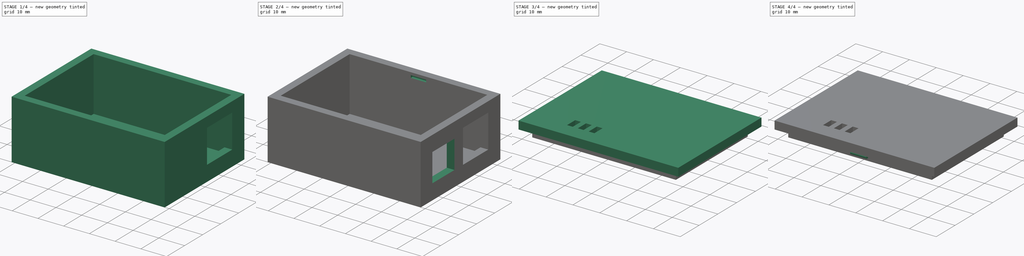
[diagram: build sequence overview — one tinted view per stage of 4, left to right]
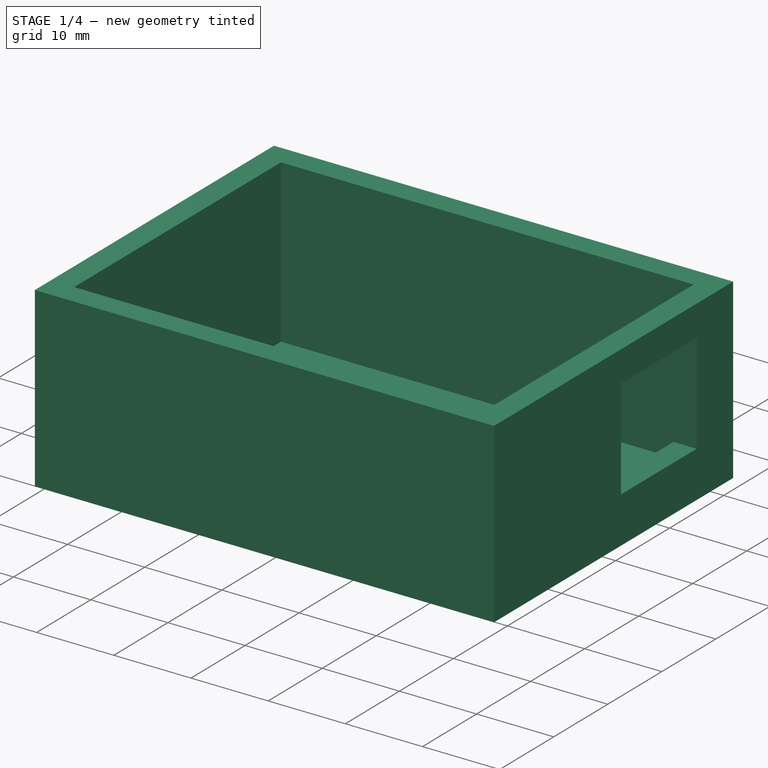
[diagram: stage 1 of 4 — iso view after this stage's code; geometry added in this stage tinted green]
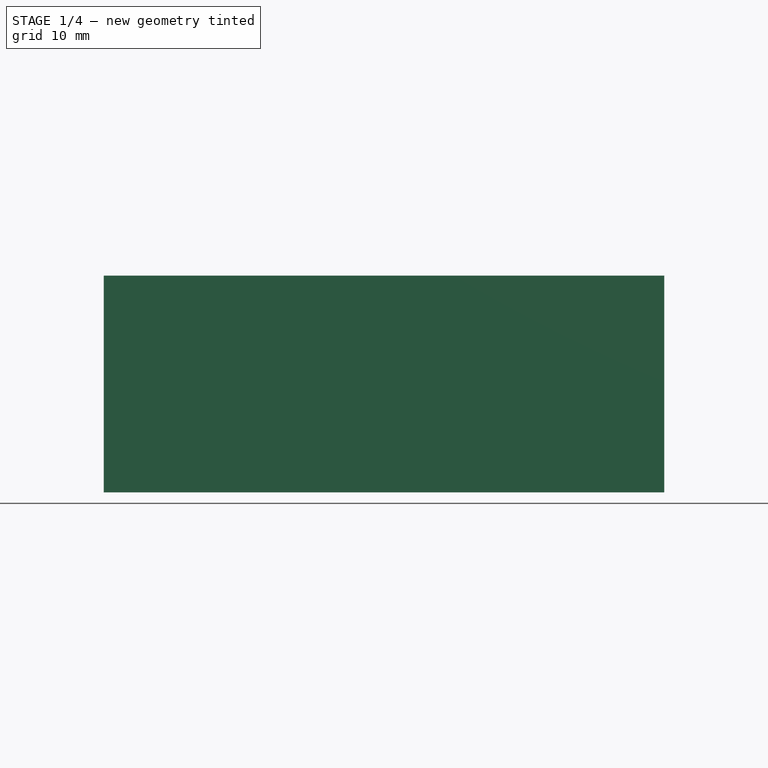
[diagram: stage 1 of 4 — front view after this stage's code; geometry added in this stage tinted green]
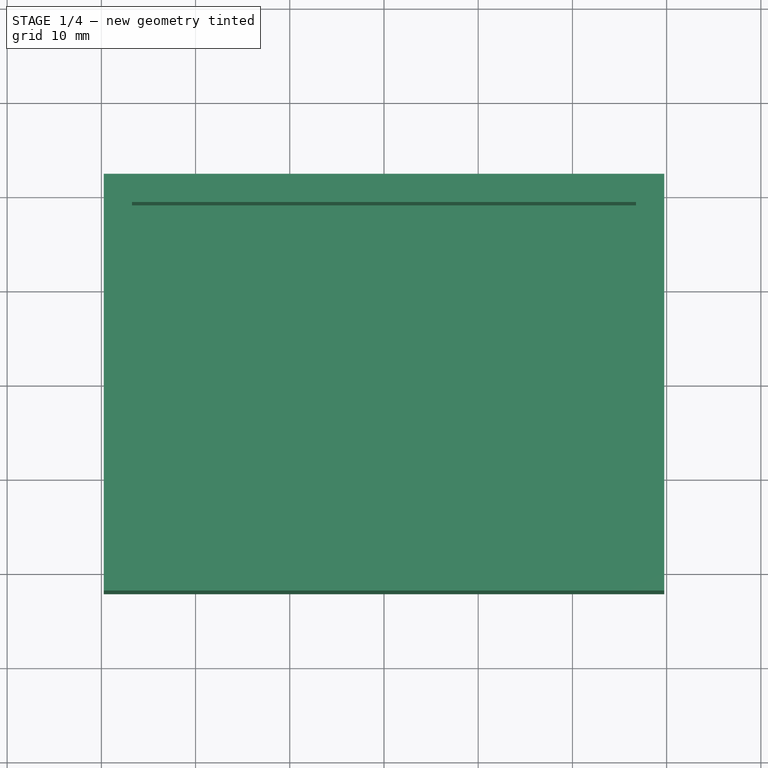
[diagram: stage 1 of 4 — top view after this stage's code; geometry added in this stage tinted green]
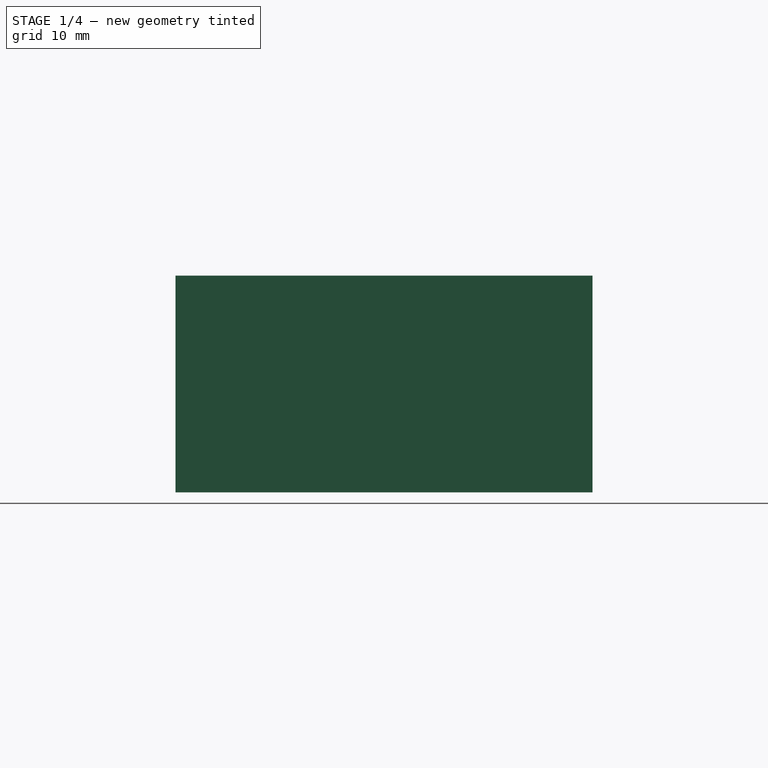
[diagram: stage 1 of 4 — right view after this stage's code; geometry added in this stage tinted green]
FCSTD DOCUMENT  (FreeCAD 1.0R39109 (Git))
Label: smartportbox
License: All rights reserved
LicenseURL: http://en.wikipedia.org/wiki/All_rights_reserved
objects: Sketcher::SketchObject×12, PartDesign::Pad×6, PartDesign::Pocket×5, PartDesign::SubShapeBinder×2, PartDesign::Body×2, PartDesign::Plane×1, PartDesign::Fillet×1, App::Part×1
note: 65 computed .brp shape members not serialized (recipe doc carries the construction recipe); baked Part::Feature solids carry a one-line shape summary decoded from their .brp

FEATURE [Sketcher::SketchObject] Sketch  label="Board"
  ArcFitTolerance = 1e-06
  AttachmentSupport = -> [XY_Plane]
  FullyConstrained = true
  MakeInternals = false
  MapMode = 5
  sketch-geometry (9):
    g0: LineSegment StartX=-26.75 StartY=-19.125 StartZ=0 EndX=26.75 EndY=-19.125 EndZ=0
    g1: LineSegment StartX=26.75 StartY=-19.125 StartZ=0 EndX=26.75 EndY=19.125 EndZ=0
    g2: LineSegment StartX=26.75 StartY=19.125 StartZ=0 EndX=-26.75 EndY=19.125 EndZ=0
    g3: LineSegment StartX=-26.75 StartY=19.125 StartZ=0 EndX=-26.75 EndY=-19.125 EndZ=0
    g4: GeomPoint [constr] X=0 Y=0 Z=0
    g5: LineSegment StartX=-3.5 StartY=15.355 StartZ=0 EndX=-3.5 EndY=9.355 EndZ=0
    g6: LineSegment StartX=-3.5 StartY=9.355 StartZ=0 EndX=2.5 EndY=9.355 EndZ=0
    g7: LineSegment StartX=2.5 StartY=9.355 StartZ=0 EndX=2.5 EndY=15.355 EndZ=0
    g8: LineSegment StartX=2.5 StartY=15.355 StartZ=0 EndX=-3.5 EndY=15.355 EndZ=0
  constraints (24):
    c: Coincident(g0,g1)
    c: Coincident(g1,g2)
    c: Coincident(g2,g3)
    c: Coincident(g3,g0)
    c: Horizontal(g0)
    c: Horizontal(g2)
    c: Vertical(g1)
    c: Vertical(g3)
    c: Symmetric(g2,g0,g4)
    c: Distance(g1,g3) = 53.5
    c: Distance(g0,g2) = 38.25
    c: Coincident(g4,g-1)
    c: Coincident(g5,g6)
    c: Coincident(g6,g7)
    c: Coincident(g7,g8)
    c: Coincident(g8,g5)
    c: Vertical(g5)
    c: Vertical(g7)
    c: Horizontal(g6)
    c: Horizontal(g8)
    c: DistanceY(g7,g1) = 3.77
    c: DistanceY(g7,g7) = 6
    c: DistanceX(g6,g6) = 6
    c: DistanceX(g7,g1) = 24.25
FEATURE [PartDesign::SubShapeBinder] Binder
  BindCopyOnChange = 0
  BindMode = 0
  ClaimChildren = false
  Context = -> Part [Body.Binder.]
  Fuse = false
  MakeFace = true
  OffsetFill = false
  OffsetIntersection = false
  OffsetJoinType = 0
  OffsetOpenResult = false
  PartialLoad = false
  Refine = true
  Relative = true
  Support = -> [Sketch]
  _Version = 2
FEATURE [Sketcher::SketchObject] Sketch001
  ArcFitTolerance = 1e-06
  AttachmentSupport = -> [XY_Plane001]
  ExternalGeometry = -> [Binder]
  FullyConstrained = true
  MakeInternals = false
  MapMode = 5
  sketch-geometry (5):
    g0: LineSegment StartX=-29.75 StartY=22.125 StartZ=0 EndX=-29.75 EndY=-22.125 EndZ=0
    g1: LineSegment StartX=-29.75 StartY=-22.125 StartZ=0 EndX=29.75 EndY=-22.125 EndZ=0
    g2: LineSegment StartX=29.75 StartY=-22.125 StartZ=0 EndX=29.75 EndY=22.125 EndZ=0
    g3: LineSegment StartX=29.75 StartY=22.125 StartZ=0 EndX=-29.75 EndY=22.125 EndZ=0
    g4: GeomPoint [constr] X=0 Y=0 Z=0
  constraints (12):
    c: Coincident(g0,g1)
    c: Coincident(g1,g2)
    c: Coincident(g2,g3)
    c: Coincident(g3,g0)
    c: Vertical(g0)
    c: Vertical(g2)
    c: Horizontal(g1)
    c: Horizontal(g3)
    c: Symmetric(g2,g0,g4)
    c: Coincident(g4,g-1)
    c: DistanceY(g-4,g2) = 3
    c: DistanceX(g-4,g1) = 3
FEATURE [PartDesign::Pad] Pad
  Direction = (0,0,1)
  Length = 2
  Length2 = 10
  Profile = -> Sketch001
  ReferenceAxis = -> Sketch001 [N_Axis]
  Refine = true
  Suppressed = false
  Type = 0
FEATURE [Sketcher::SketchObject] Sketch002
  ArcFitTolerance = 1e-06
  AttachmentSupport = -> [Pad]
  ExternalGeometry = -> [Binder,Pad]
  FullyConstrained = true
  MakeInternals = false
  MapMode = 5
  Placement = pos=(0,0,2) rot=(0,0,1;0rad)
  sketch-geometry (8):
    g0: LineSegment StartX=-26.75 StartY=19.125 StartZ=0 EndX=-26.75 EndY=-19.125 EndZ=0
    g1: LineSegment StartX=-26.75 StartY=-19.125 StartZ=0 EndX=26.75 EndY=-19.125 EndZ=0
    g2: LineSegment StartX=26.75 StartY=-19.125 StartZ=0 EndX=26.75 EndY=19.125 EndZ=0
    g3: LineSegment StartX=26.75 StartY=19.125 StartZ=0 EndX=-26.75 EndY=19.125 EndZ=0
    g4: LineSegment StartX=-29.75 StartY=22.125 StartZ=0 EndX=-29.75 EndY=-22.125 EndZ=0
    g5: LineSegment StartX=-29.75 StartY=-22.125 StartZ=0 EndX=29.75 EndY=-22.125 EndZ=0
    g6: LineSegment StartX=29.75 StartY=-22.125 StartZ=0 EndX=29.75 EndY=22.125 EndZ=0
    g7: LineSegment StartX=29.75 StartY=22.125 StartZ=0 EndX=-29.75 EndY=22.125 EndZ=0
  constraints (20):
    c: Coincident(g0,g1)
    c: Coincident(g1,g2)
    c: Coincident(g2,g3)
    c: Coincident(g3,g0)
    c: Vertical(g0)
    c: Vertical(g2)
    c: Horizontal(g1)
    c: Horizontal(g3)
    c: Coincident(g0,g-3)
    c: Coincident(g1,g-4)
    c: Coincident(g4,g5)
    c: Coincident(g5,g6)
    c: Coincident(g6,g7)
    c: Coincident(g7,g4)
    c: Vertical(g4)
    c: Vertical(g6)
    c: Horizontal(g5)
    c: Horizontal(g7)
    c: Coincident(g4,g-5)
    c: Coincident(g5,g-6)
FEATURE [PartDesign::Pad] Pad001
  BaseFeature = -> Pad
  Direction = (0,0,1)
  Length = 21
  Length2 = 10
  Profile = -> Sketch002
  ReferenceAxis = -> Sketch002 [N_Axis]
  Refine = true
  Suppressed = false
  Type = 0
FEATURE [Sketcher::SketchObject] Sketch003
  ArcFitTolerance = 1e-06
  AttachmentSupport = -> [Pad001]
  ExternalGeometry = -> [Pad001]
  FullyConstrained = true
  MakeInternals = false
  MapMode = 5
  Placement = pos=(26.75,0,0) rot=(0.57735,-0.57735,-0.57735;2.0944rad)
  sketch-geometry (4):
    g0: LineSegment StartX=-15.375 StartY=19 StartZ=0 EndX=-15.375 EndY=6 EndZ=0
    g1: LineSegment StartX=-15.375 StartY=6 StartZ=0 EndX=-1.375 EndY=6 EndZ=0
    g2: LineSegment StartX=-1.375 StartY=6 StartZ=0 EndX=-1.375 EndY=19 EndZ=0
    g3: LineSegment StartX=-1.375 StartY=19 StartZ=0 EndX=-15.375 EndY=19 EndZ=0
  constraints (12):
    c: Coincident(g0,g1)
    c: Coincident(g1,g2)
    c: Coincident(g2,g3)
    c: Coincident(g3,g0)
    c: Vertical(g0)
    c: Vertical(g2)
    c: Horizontal(g1)
    c: Horizontal(g3)
    c: DistanceY(g-3,g0) = 4
    c: DistanceX(g-3,g0) = 3.75
    c: DistanceX(g1,g1) = 14
    c: DistanceY(g2,g2) = 13
FEATURE [PartDesign::Pocket] Pocket
  BaseFeature = -> Pad001
  Direction = (1,0,0)
  Length = 5
  Length2 = 5
  Profile = -> Sketch003
  ReferenceAxis = -> Sketch003 [N_Axis]
  Refine = true
  Suppressed = false
  Type = 2
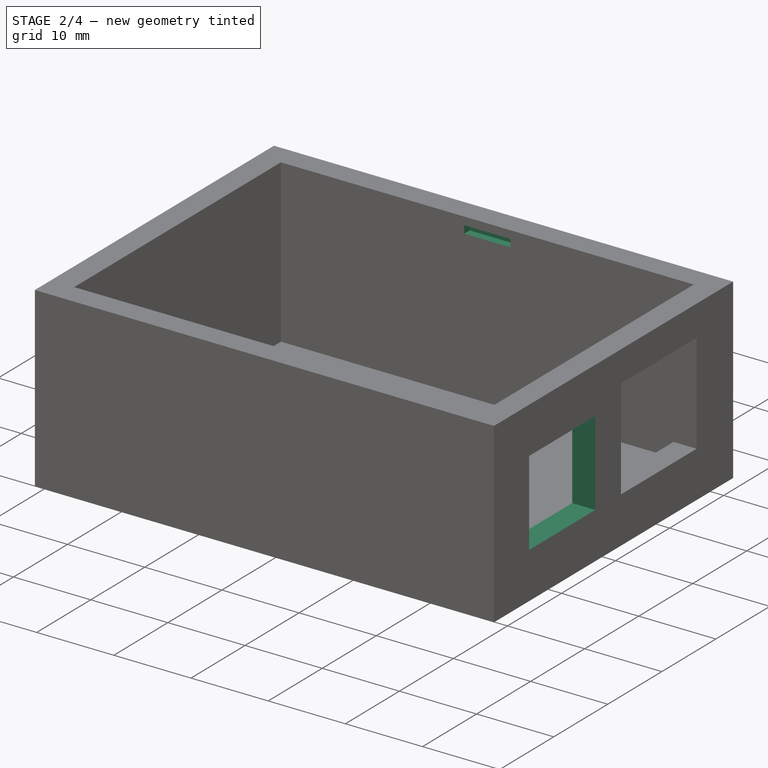
[diagram: stage 2 of 4 — iso view after this stage's code; geometry added in this stage tinted green]
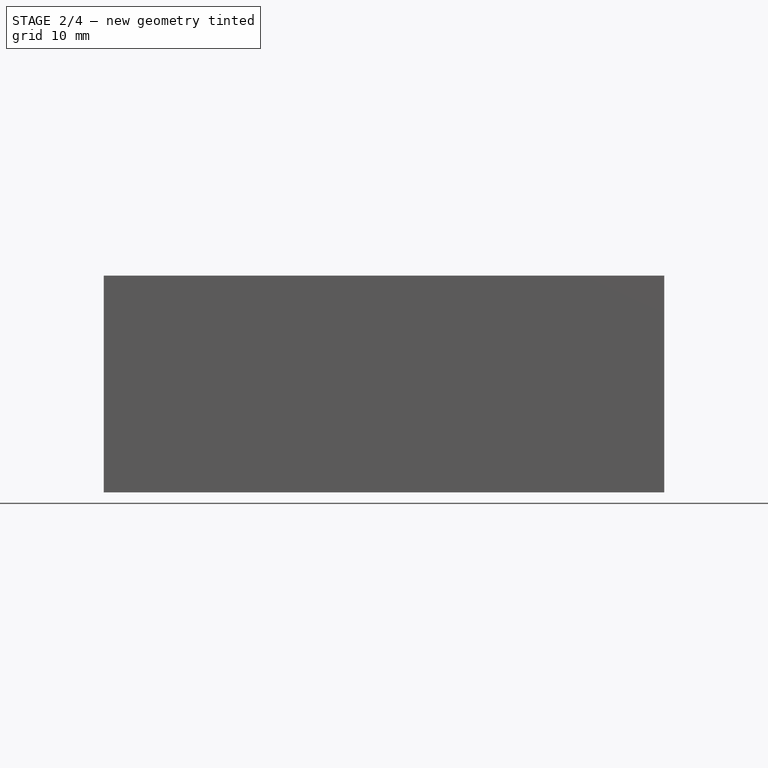
[diagram: stage 2 of 4 — front view after this stage's code; geometry added in this stage tinted green]
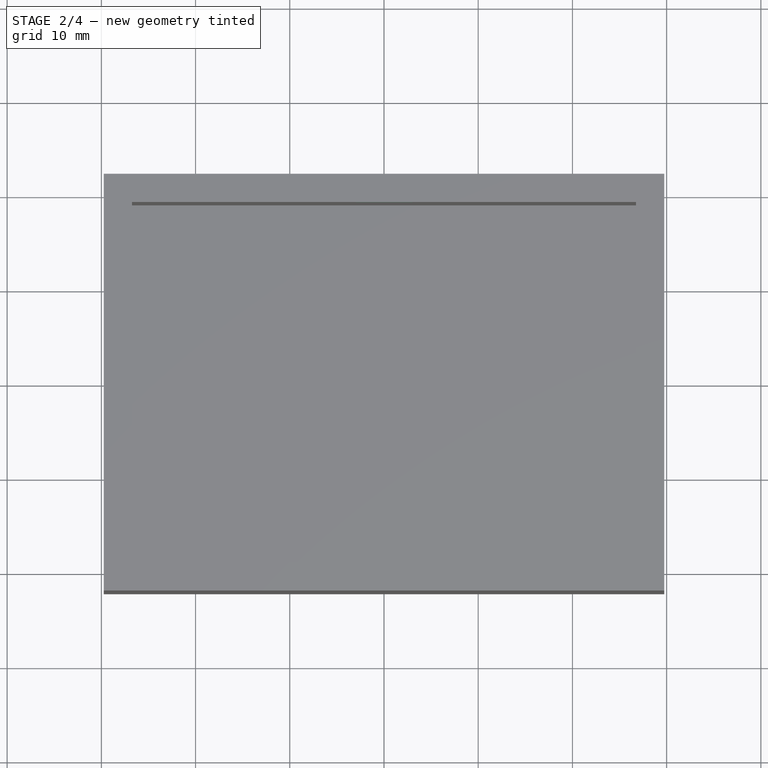
[diagram: stage 2 of 4 — top view after this stage's code; geometry added in this stage tinted green]
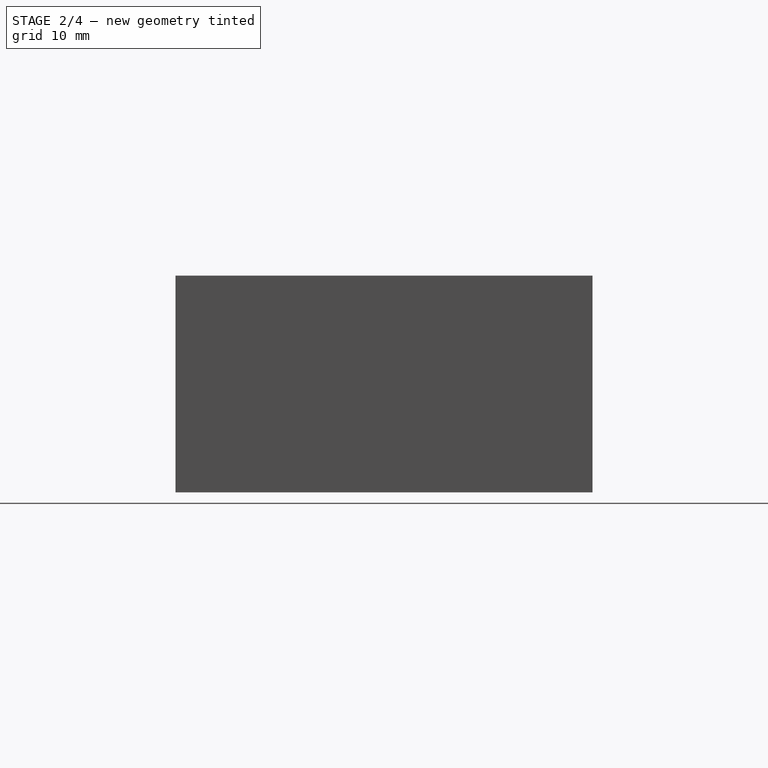
[diagram: stage 2 of 4 — right view after this stage's code; geometry added in this stage tinted green]
FEATURE [Sketcher::SketchObject] Sketch004
  ArcFitTolerance = 1e-06
  AttachmentSupport = -> [Pocket]
  ExternalGeometry = -> [Pocket]
  FullyConstrained = true
  MakeInternals = false
  MapMode = 5
  Placement = pos=(26.75,0,0) rot=(0.57735,-0.57735,-0.57735;2.0944rad)
  sketch-geometry (4):
    g0: LineSegment StartX=3.375 StartY=17 StartZ=0 EndX=3.375 EndY=6 EndZ=0
    g1: LineSegment StartX=3.375 StartY=6 StartZ=0 EndX=15.625 EndY=6 EndZ=0
    g2: LineSegment StartX=15.625 StartY=6 StartZ=0 EndX=15.625 EndY=17 EndZ=0
    g3: LineSegment StartX=15.625 StartY=17 StartZ=0 EndX=3.375 EndY=17 EndZ=0
  constraints (12):
    c: Coincident(g0,g1)
    c: Coincident(g1,g2)
    c: Coincident(g2,g3)
    c: Coincident(g3,g0)
    c: Vertical(g0)
    c: Vertical(g2)
    c: Horizontal(g1)
    c: Horizontal(g3)
    c: Horizontal(g-5,g0)
    c: DistanceX(g1,g-4) = 3.5
    c: DistanceX(g1,g1) = 12.25
    c: DistanceY(g0,g0) = 11
FEATURE [PartDesign::Pocket] Pocket001
  BaseFeature = -> Pocket
  Direction = (1,0,0)
  Length = 5
  Length2 = 5
  Profile = -> Sketch004
  ReferenceAxis = -> Sketch004 [N_Axis]
  Refine = true
  Suppressed = false
  Type = 2
FEATURE [Sketcher::SketchObject] Sketch009
  ArcFitTolerance = 1e-06
  AttachmentSupport = -> [Pocket001]
  ExternalGeometry = -> [Pocket001]
  FullyConstrained = true
  MakeInternals = false
  MapMode = 5
  Placement = pos=(0,19.125,0) rot=(1,0,0;1.5708rad)
  sketch-geometry (5):
    g0: LineSegment StartX=-3 StartY=21 StartZ=0 EndX=3 EndY=21 EndZ=0
    g1: LineSegment StartX=3 StartY=21 StartZ=0 EndX=3 EndY=22 EndZ=0
    g2: LineSegment StartX=3 StartY=22 StartZ=0 EndX=-3 EndY=22 EndZ=0
    g3: LineSegment StartX=-3 StartY=22 StartZ=0 EndX=-3 EndY=21 EndZ=0
    g4: GeomPoint [constr] X=0 Y=21.5 Z=0
  constraints (13):
    c: Coincident(g0,g1)
    c: Coincident(g1,g2)
    c: Coincident(g2,g3)
    c: Coincident(g3,g0)
    c: Horizontal(g0)
    c: Horizontal(g2)
    c: Vertical(g1)
    c: Vertical(g3)
    c: Symmetric(g2,g0,g4)
    c: Distance(g1,g3) = 6
    c: Distance(g0,g2) = 1
    c: PointOnObject(g4,g-2)
    c: DistanceY(g2,g-3) = 1
FEATURE [PartDesign::Pocket] Pocket002
  BaseFeature = -> Pocket001
  Direction = (0,1,-2e-16)
  Length = 1
  Length2 = 5
  Profile = -> Sketch009
  ReferenceAxis = -> Sketch009 [N_Axis]
  Refine = true
  Suppressed = false
  Type = 0
FEATURE [Sketcher::SketchObject] Sketch010
  ArcFitTolerance = 1e-06
  AttachmentSupport = -> [Pocket002]
  ExternalGeometry = -> [Pocket002]
  FullyConstrained = true
  MakeInternals = false
  MapMode = 5
  Placement = pos=(0,-19.125,0) rot=(0,0.707107,0.707107;3.14159rad)
  sketch-geometry (5):
    g0: LineSegment StartX=-3 StartY=21 StartZ=0 EndX=3 EndY=21 EndZ=0
    g1: LineSegment StartX=3 StartY=21 StartZ=0 EndX=3 EndY=22 EndZ=0
    g2: LineSegment StartX=3 StartY=22 StartZ=0 EndX=-3 EndY=22 EndZ=0
    g3: LineSegment StartX=-3 StartY=22 StartZ=0 EndX=-3 EndY=21 EndZ=0
    g4: GeomPoint [constr] X=0 Y=21.5 Z=0
  constraints (13):
    c: Coincident(g0,g1)
    c: Coincident(g1,g2)
    c: Coincident(g2,g3)
    c: Coincident(g3,g0)
    c: Horizontal(g0)
    c: Horizontal(g2)
    c: Vertical(g1)
    c: Vertical(g3)
    c: Symmetric(g2,g0,g4)
    c: Distance(g1,g3) = 6
    c: Distance(g0,g2) = 1
    c: PointOnObject(g4,g-2)
    c: DistanceY(g2,g-3) = 1
FEATURE [PartDesign::Pocket] Pocket003
  BaseFeature = -> Pocket002
  Direction = (0,-1,2e-16)
  Length = 1
  Length2 = 5
  Profile = -> Sketch010
  ReferenceAxis = -> Sketch010 [N_Axis]
  Refine = true
  Suppressed = false
  Type = 0
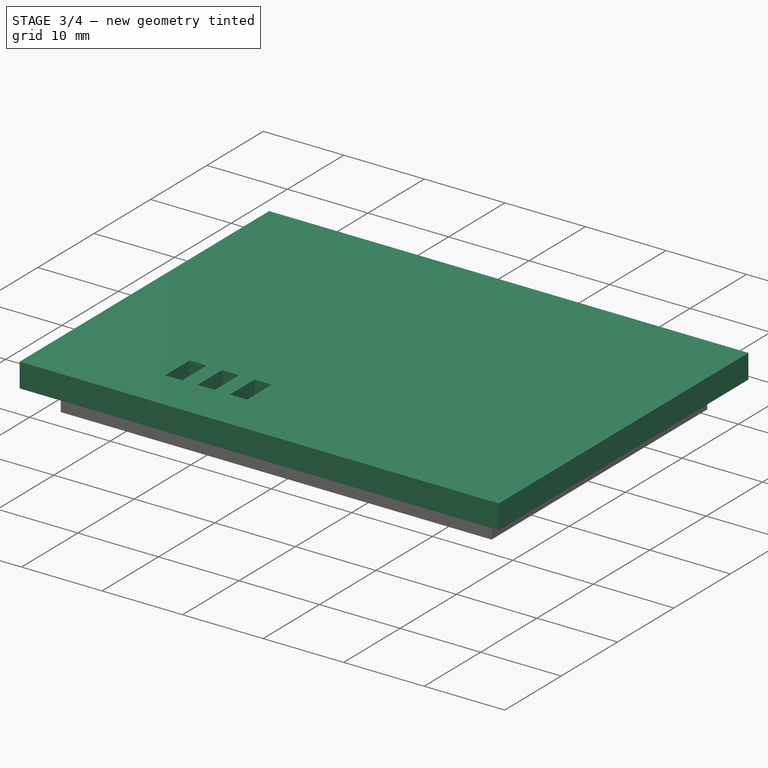
[diagram: stage 3 of 4 — iso view after this stage's code; geometry added in this stage tinted green]
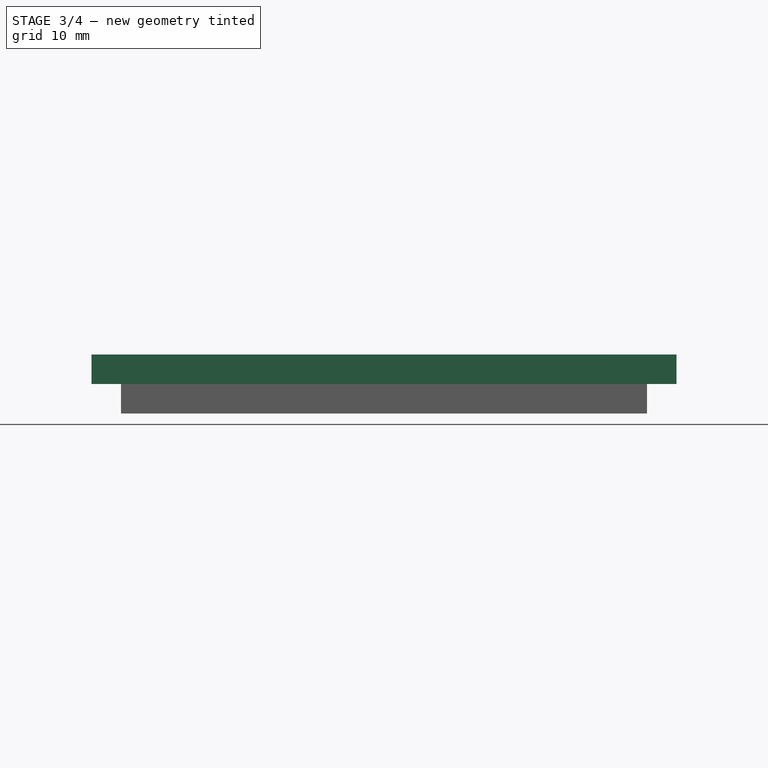
[diagram: stage 3 of 4 — front view after this stage's code; geometry added in this stage tinted green]
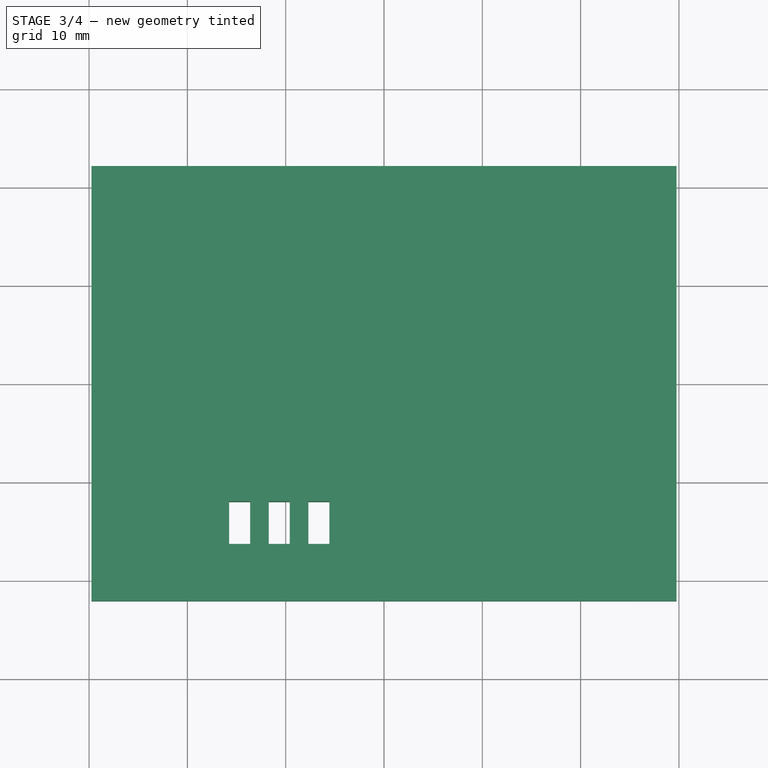
[diagram: stage 3 of 4 — top view after this stage's code; geometry added in this stage tinted green]
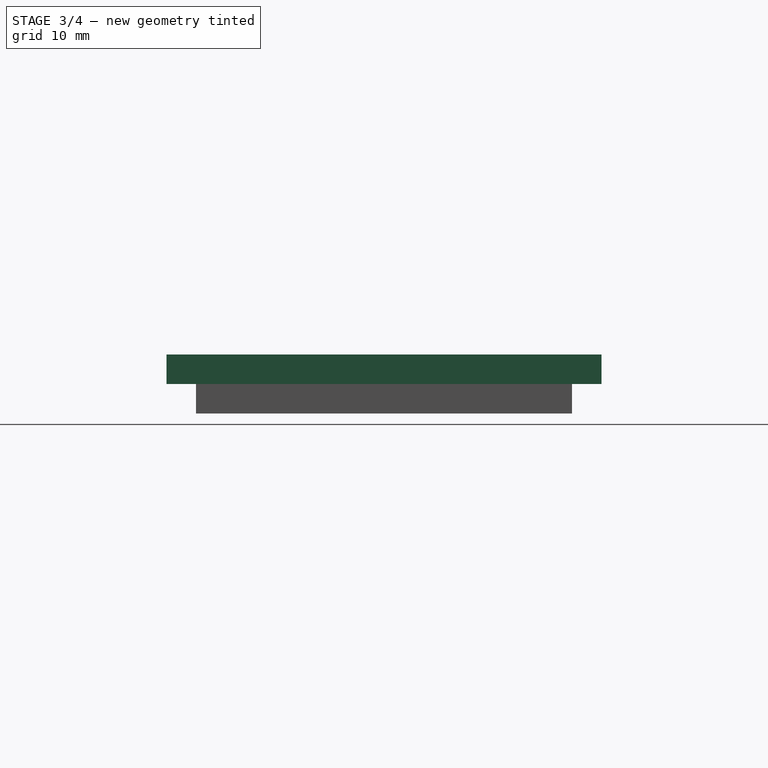
[diagram: stage 3 of 4 — right view after this stage's code; geometry added in this stage tinted green]
FEATURE [PartDesign::SubShapeBinder] Binder001
  BindCopyOnChange = 0
  BindMode = 0
  ClaimChildren = false
  Context = -> Part [Body001.Binder001.]
  Fuse = false
  MakeFace = true
  OffsetFill = false
  OffsetIntersection = false
  OffsetJoinType = 0
  OffsetOpenResult = false
  PartialLoad = false
  Refine = true
  Relative = true
  Support = -> [Body[Pocket001.]]
  _Version = 2
FEATURE [PartDesign::Plane] DatumPlane
  AttachmentSupport = -> [Binder001]
  Length = 70.4087
  MapMode = 5
  Placement = pos=(0,0,23) rot=(0,0,1;0rad)
  ResizeMode = 0
  Width = 60.9087
FEATURE [Sketcher::SketchObject] Sketch005
  ArcFitTolerance = 1e-06
  AttachmentSupport = -> [DatumPlane]
  ExternalGeometry = -> [Binder001]
  FullyConstrained = true
  MakeInternals = false
  MapMode = 5
  Placement = pos=(0,0,23) rot=(0,0,1;0rad)
  sketch-geometry (19):
    g0: LineSegment StartX=-29.75 StartY=22.125 StartZ=0 EndX=-29.75 EndY=-22.125 EndZ=0
    g1: LineSegment StartX=-29.75 StartY=-22.125 StartZ=0 EndX=29.75 EndY=-22.125 EndZ=0
    g2: LineSegment StartX=29.75 StartY=-22.125 StartZ=0 EndX=29.75 EndY=22.125 EndZ=0
    g3: LineSegment StartX=29.75 StartY=22.125 StartZ=0 EndX=-29.75 EndY=22.125 EndZ=0
    g4: LineSegment StartX=-15.75 StartY=-11.975 StartZ=0 EndX=-15.75 EndY=-16.315 EndZ=0
    g5: LineSegment StartX=-15.75 StartY=-16.315 StartZ=0 EndX=-13.62 EndY=-16.315 EndZ=0
    g6: LineSegment StartX=-13.62 StartY=-16.315 StartZ=0 EndX=-13.62 EndY=-11.975 EndZ=0
    g7: LineSegment StartX=-13.62 StartY=-11.975 StartZ=0 EndX=-15.75 EndY=-11.975 EndZ=0
    g8: GeomPoint [constr] X=-14.685 Y=-14.145 Z=0
    g9: LineSegment StartX=-11.72 StartY=-11.975 StartZ=0 EndX=-11.72 EndY=-16.315 EndZ=0
    g10: LineSegment StartX=-11.72 StartY=-16.315 StartZ=0 EndX=-9.59 EndY=-16.315 EndZ=0
    g11: LineSegment StartX=-9.59 StartY=-16.315 StartZ=0 EndX=-9.59 EndY=-11.975 EndZ=0
    g12: LineSegment StartX=-9.59 StartY=-11.975 StartZ=0 EndX=-11.72 EndY=-11.975 EndZ=0
    g13: GeomPoint [constr] X=-10.655 Y=-14.145 Z=0
    g14: LineSegment StartX=-7.69 StartY=-11.975 StartZ=0 EndX=-7.69 EndY=-16.315 EndZ=0
    g15: LineSegment StartX=-7.69 StartY=-16.315 StartZ=0 EndX=-5.56 EndY=-16.315 EndZ=0
    g16: LineSegment StartX=-5.56 StartY=-16.315 StartZ=0 EndX=-5.56 EndY=-11.975 EndZ=0
    g17: LineSegment StartX=-5.56 StartY=-11.975 StartZ=0 EndX=-7.69 EndY=-11.975 EndZ=0
    g18: GeomPoint [constr] X=-6.625 Y=-14.145 Z=0
  constraints (49):
    c: Coincident(g0,g1)
    c: Coincident(g1,g2)
    c: Coincident(g2,g3)
    c: Coincident(g3,g0)
    c: Vertical(g0)
    c: Vertical(g2)
    c: Horizontal(g1)
    c: Horizontal(g3)
    c: Coincident(g0,g-4)
    c: Coincident(g1,g-3)
    c: Coincident(g4,g5)
    c: Coincident(g5,g6)
    c: Coincident(g6,g7)
    c: Coincident(g7,g4)
    c: Vertical(g4)
    c: Vertical(g6)
    c: Horizontal(g5)
    c: Horizontal(g7)
    c: Symmetric(g6,g4,g8)
    c: DistanceX(g-6,g4) = 11
    c: DistanceY(g-6,g4) = 7.15
    c: Distance(g4,g6) = 2.13
    c: DistanceY(g6,g6) = 4.34
    c: Coincident(g9,g10)
    c: Coincident(g10,g11)
    c: Coincident(g11,g12)
    c: Coincident(g12,g9)
    c: Vertical(g9)
    c: Vertical(g11)
    c: Horizontal(g10)
    c: Horizontal(g12)
    c: Symmetric(g11,g9,g13)
    c: Coincident(g14,g15)
    c: Coincident(g15,g16)
    c: Coincident(g16,g17)
    c: Coincident(g17,g14)
    c: Vertical(g14)
    c: Vertical(g16)
    c: Horizontal(g15)
    c: Horizontal(g17)
    c: Symmetric(g16,g14,g18)
    c: Equal(g7,g12)
    c: Equal(g12,g17)
    c: Equal(g9,g6)
    c: Equal(g6,g16)
    c: Horizontal(g9,g6)
    c: Horizontal(g6,g14)
    c: DistanceX(g6,g9) = 1.9
    c: DistanceX(g11,g14) = 1.9
FEATURE [PartDesign::Pad] Pad002
  Direction = (0,0,1)
  Length = 3
  Length2 = 10
  Placement = pos=(0,0,23) rot=(0,0,1;0rad)
  Profile = -> Sketch005
  ReferenceAxis = -> Sketch005 [N_Axis]
  Refine = true
  Suppressed = false
  Type = 0
FEATURE [Sketcher::SketchObject] Sketch006
  ArcFitTolerance = 1e-06
  AttachmentSupport = -> [Pad002]
  ExternalGeometry = -> [Binder001,Sketch005]
  FullyConstrained = true
  MakeInternals = false
  MapMode = 5
  Placement = pos=(0,0,23) rot=(1,0,0;3.14159rad)
  sketch-geometry (16):
    g0: LineSegment StartX=26.75 StartY=19.125 StartZ=0 EndX=-26.75 EndY=19.125 EndZ=0
    g1: LineSegment StartX=-26.75 StartY=19.125 StartZ=0 EndX=-26.75 EndY=-19.125 EndZ=0
    g2: LineSegment StartX=-26.75 StartY=-19.125 StartZ=0 EndX=26.75 EndY=-19.125 EndZ=0
    g3: LineSegment StartX=26.75 StartY=-19.125 StartZ=0 EndX=26.75 EndY=19.125 EndZ=0
    g4: LineSegment StartX=-5.56 StartY=11.975 StartZ=0 EndX=-5.56 EndY=16.315 EndZ=0
    g5: LineSegment StartX=-5.56 StartY=16.315 StartZ=0 EndX=-7.69 EndY=16.315 EndZ=0
    g6: LineSegment StartX=-7.69 StartY=16.315 StartZ=0 EndX=-7.69 EndY=11.975 EndZ=0
    g7: LineSegment StartX=-7.69 StartY=11.975 StartZ=0 EndX=-5.56 EndY=11.975 EndZ=0
    g8: LineSegment StartX=-11.72 StartY=16.315 StartZ=0 EndX=-11.72 EndY=11.975 EndZ=0
    g9: LineSegment StartX=-11.72 StartY=11.975 StartZ=0 EndX=-9.59 EndY=11.975 EndZ=0
    g10: LineSegment StartX=-9.59 StartY=11.975 StartZ=0 EndX=-9.59 EndY=16.315 EndZ=0
    g11: LineSegment StartX=-9.59 StartY=16.315 StartZ=0 EndX=-11.72 EndY=16.315 EndZ=0
    g12: LineSegment StartX=-13.62 StartY=11.975 StartZ=0 EndX=-13.62 EndY=16.315 EndZ=0
    g13: LineSegment StartX=-13.62 StartY=16.315 StartZ=0 EndX=-15.75 EndY=16.315 EndZ=0
    g14: LineSegment StartX=-15.75 StartY=16.315 StartZ=0 EndX=-15.75 EndY=11.975 EndZ=0
    g15: LineSegment StartX=-15.75 StartY=11.975 StartZ=0 EndX=-13.62 EndY=11.975 EndZ=0
  constraints (40):
    c: Coincident(g0,g1)
    c: Coincident(g1,g2)
    c: Coincident(g2,g3)
    c: Coincident(g3,g0)
    c: Horizontal(g0)
    c: Horizontal(g2)
    c: Vertical(g1)
    c: Vertical(g3)
    c: Coincident(g0,g-3)
    c: Coincident(g1,g-4)
    c: Coincident(g4,g5)
    c: Coincident(g5,g6)
    c: Coincident(g6,g7)
    c: Coincident(g7,g4)
    c: Vertical(g4)
    c: Vertical(g6)
    c: Horizontal(g5)
    c: Horizontal(g7)
    c: Coincident(g4,g-5)
    c: Coincident(g5,g-6)
    c: Coincident(g8,g9)
    c: Coincident(g9,g10)
    c: Coincident(g10,g11)
    c: Coincident(g11,g8)
    c: Vertical(g8)
    c: Vertical(g10)
    c: Horizontal(g9)
    c: Horizontal(g11)
    c: Coincident(g8,g-7)
    c: Coincident(g9,g-8)
    c: Coincident(g12,g13)
    c: Coincident(g13,g14)
    c: Coincident(g14,g15)
    c: Coincident(g15,g12)
    c: Vertical(g12)
    c: Vertical(g14)
    c: Horizontal(g13)
    c: Horizontal(g15)
    c: Coincident(g12,g-9)
    c: Coincident(g13,g-10)
FEATURE [PartDesign::Pad] Pad003
  BaseFeature = -> Pad002
  Direction = (0,0,-1)
  Length = 3
  Length2 = 10
  Placement = pos=(0,0,23) rot=(0,0,1;0rad)
  Profile = -> Sketch006
  ReferenceAxis = -> Sketch006 [N_Axis]
  Refine = true
  Suppressed = false
  Type = 0
FEATURE [Sketcher::SketchObject] Sketch011
  ArcFitTolerance = 1e-06
  AttachmentSupport = -> [Pocket003]
  ExternalGeometry = -> [Pocket003]
  FullyConstrained = true
  MakeInternals = false
  MapMode = 5
  Placement = pos=(-26.75,0,0) rot=(0.57735,0.57735,0.57735;2.0944rad)
  sketch-geometry (4):
    g0: LineSegment StartX=-1.675 StartY=10.5 StartZ=0 EndX=-1.675 EndY=2 EndZ=0
    g1: LineSegment StartX=-1.675 StartY=2 StartZ=0 EndX=16.475 EndY=2 EndZ=0
    g2: LineSegment StartX=16.475 StartY=2 StartZ=0 EndX=16.475 EndY=10.5 EndZ=0
    g3: LineSegment StartX=16.475 StartY=10.5 StartZ=0 EndX=-1.675 EndY=10.5 EndZ=0
  constraints (12):
    c: Coincident(g0,g1)
    c: Coincident(g1,g2)
    c: Coincident(g2,g3)
    c: Coincident(g3,g0)
    c: Vertical(g0)
    c: Vertical(g2)
    c: Horizontal(g1)
    c: Horizontal(g3)
    c: DistanceX(g1,g-4) = 2.65
    c: DistanceX(g3,g3) = 18.15
    c: DistanceY(g0,g0) = 8.5
    c: Horizontal(g1,g-4)
FEATURE [PartDesign::Pocket] Pocket004
  BaseFeature = -> Pocket003
  Direction = (-1,0,0)
  Length = 5
  Length2 = 5
  Profile = -> Sketch011
  ReferenceAxis = -> Sketch011 [N_Axis]
  Refine = true
  Suppressed = false
  Type = 2
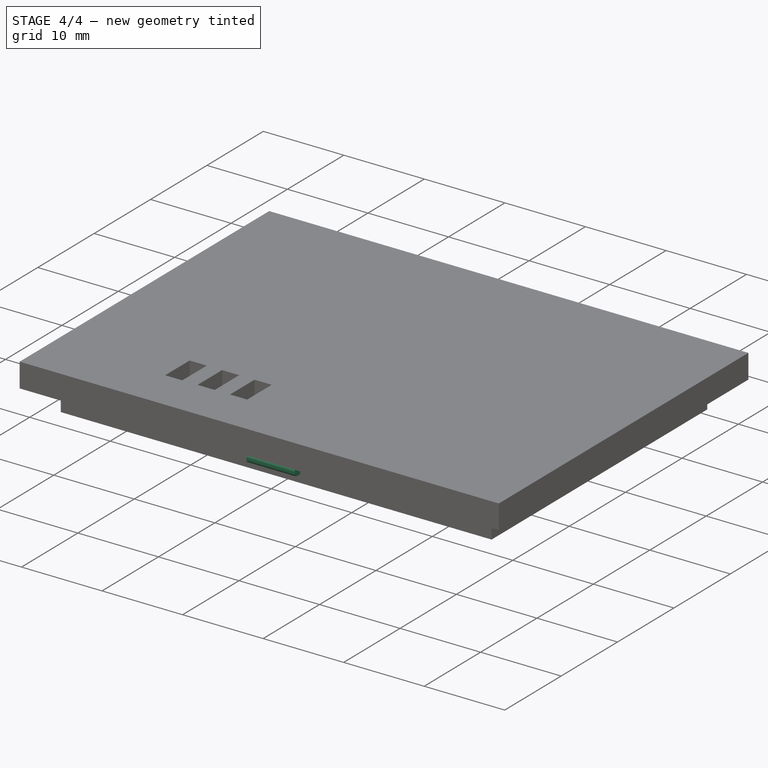
[diagram: stage 4 of 4 — iso view after this stage's code; geometry added in this stage tinted green]
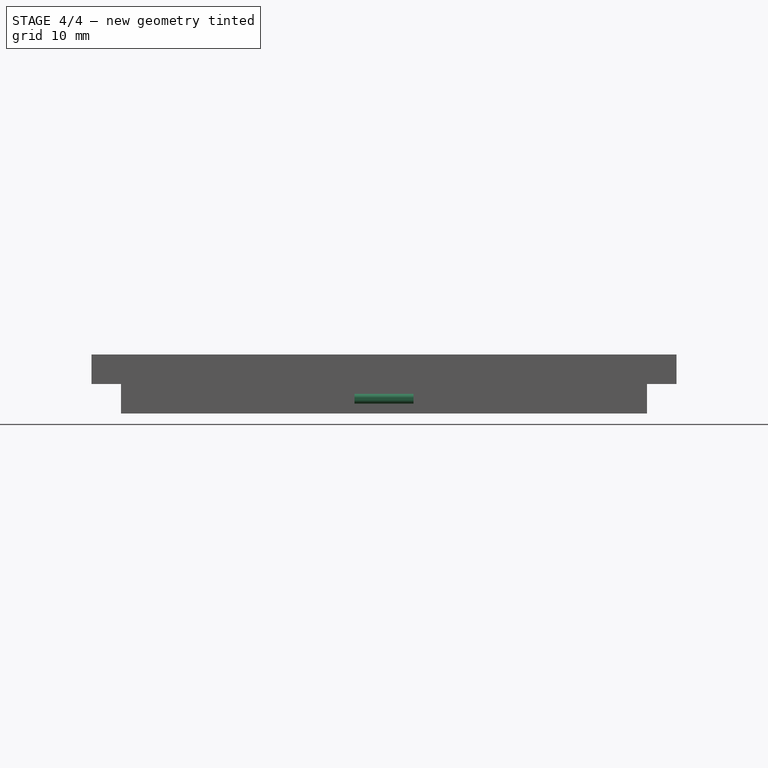
[diagram: stage 4 of 4 — front view after this stage's code; geometry added in this stage tinted green]
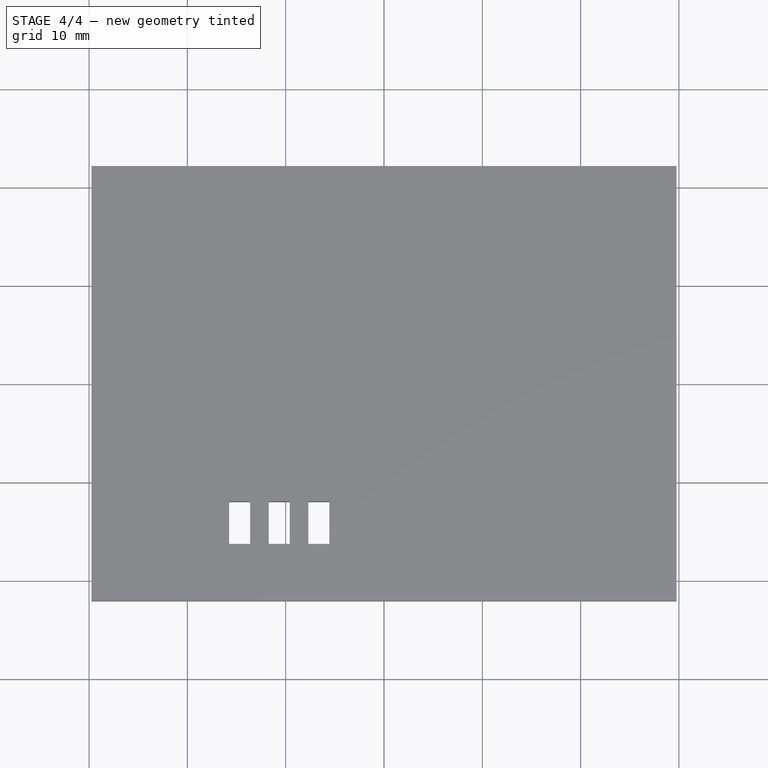
[diagram: stage 4 of 4 — top view after this stage's code; geometry added in this stage tinted green]
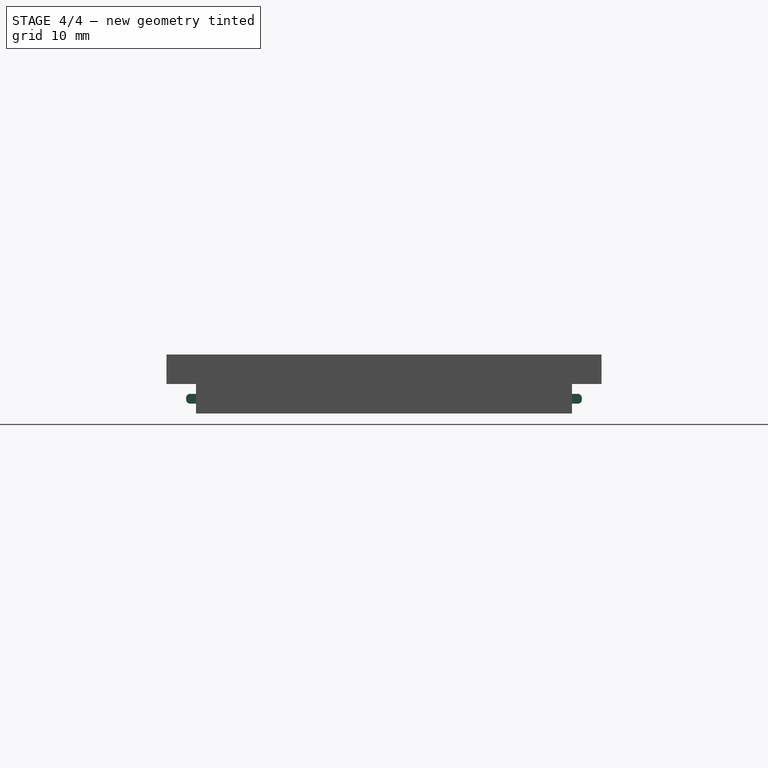
[diagram: stage 4 of 4 — right view after this stage's code; geometry added in this stage tinted green]
FEATURE [Sketcher::SketchObject] Sketch007
  ArcFitTolerance = 1e-06
  AttachmentSupport = -> [Pad003]
  ExternalGeometry = -> [Pad003]
  FullyConstrained = true
  MakeInternals = false
  MapMode = 5
  Placement = pos=(0,-19.125,23) rot=(1,0,0;1.5708rad)
  sketch-geometry (5):
    g0: LineSegment StartX=-3 StartY=-2 StartZ=0 EndX=3 EndY=-2 EndZ=0
    g1: LineSegment StartX=3 StartY=-2 StartZ=0 EndX=3 EndY=-1 EndZ=0
    g2: LineSegment StartX=3 StartY=-1 StartZ=0 EndX=-3 EndY=-1 EndZ=0
    g3: LineSegment StartX=-3 StartY=-1 StartZ=0 EndX=-3 EndY=-2 EndZ=0
    g4: GeomPoint [constr] X=-5e-16 Y=-1.5 Z=0
  constraints (12):
    c: Coincident(g0,g1)
    c: Coincident(g1,g2)
    c: Coincident(g2,g3)
    c: Coincident(g3,g0)
    c: Horizontal(g0)
    c: Horizontal(g2)
    c: Vertical(g1)
    c: Vertical(g3)
    c: Symmetric(g2,g0,g4)
    c: Distance(g1,g3) = 6
    c: Distance(g0,g2) = 1
    c: Symmetric(g-3,g-4,g4)
FEATURE [PartDesign::Pad] Pad004
  BaseFeature = -> Pad003
  Direction = (0,-1,2e-16)
  Length = 1
  Length2 = 10
  Placement = pos=(0,0,23) rot=(0,0,1;0rad)
  Profile = -> Sketch007
  ReferenceAxis = -> Sketch007 [N_Axis]
  Refine = true
  Suppressed = false
  Type = 0
FEATURE [Sketcher::SketchObject] Sketch008
  ArcFitTolerance = 1e-06
  AttachmentSupport = -> [Pad004]
  ExternalGeometry = -> [Pad004]
  FullyConstrained = true
  MakeInternals = false
  MapMode = 5
  Placement = pos=(0,19.125,23) rot=(0,0.707107,0.707107;3.14159rad)
  sketch-geometry (5):
    g0: LineSegment StartX=-3 StartY=-2 StartZ=0 EndX=3 EndY=-2 EndZ=0
    g1: LineSegment StartX=3 StartY=-2 StartZ=0 EndX=3 EndY=-1 EndZ=0
    g2: LineSegment StartX=3 StartY=-1 StartZ=0 EndX=-3 EndY=-1 EndZ=0
    g3: LineSegment StartX=-3 StartY=-1 StartZ=0 EndX=-3 EndY=-2 EndZ=0
    g4: GeomPoint [constr] X=-6e-16 Y=-1.5 Z=0
  constraints (12):
    c: Coincident(g0,g1)
    c: Coincident(g1,g2)
    c: Coincident(g2,g3)
    c: Coincident(g3,g0)
    c: Horizontal(g0)
    c: Horizontal(g2)
    c: Vertical(g1)
    c: Vertical(g3)
    c: Symmetric(g2,g0,g4)
    c: Distance(g1,g3) = 6
    c: Distance(g0,g2) = 1
    c: Symmetric(g-4,g-3,g4)
FEATURE [PartDesign::Pad] Pad005
  BaseFeature = -> Pad004
  Direction = (0,1,-2e-16)
  Length = 1
  Length2 = 10
  Placement = pos=(0,0,23) rot=(0,0,1;0rad)
  Profile = -> Sketch008
  ReferenceAxis = -> Sketch008 [N_Axis]
  Refine = true
  Suppressed = false
  Type = 0
FEATURE [PartDesign::Body] Body
  AllowCompound = false
  Group = -> [Binder,Sketch001,Pad,Sketch002,Pad001,Sketch003,Pocket,Sketch004,Pocket001,Sketch009,Pocket002,Sketch010,Pocket003,Sketch011,Pocket004]
  Origin = -> Origin001
  Tip = -> Pocket004
FEATURE [PartDesign::Fillet] Fillet
  Base = -> Pad005 [Edge73,Edge76,Edge81,Edge84]
  BaseFeature = -> Pad005
  Placement = pos=(0,0,23) rot=(0,0,1;0rad)
  Radius = 0.4
  Refine = true
  SupportTransform = false
  Suppressed = false
  UseAllEdges = false
FEATURE [PartDesign::Body] Body001  label="Lid"
  AllowCompound = false
  Group = -> [Binder001,DatumPlane,Sketch005,Pad002,Sketch006,Pad003,Sketch007,Pad004,Sketch008,Pad005,Fillet]
  Origin = -> Origin002
  Tip = -> Fillet
FEATURE [App::Part] Part
  Group = -> [Sketch,Body,Body001]
  Origin = -> Origin
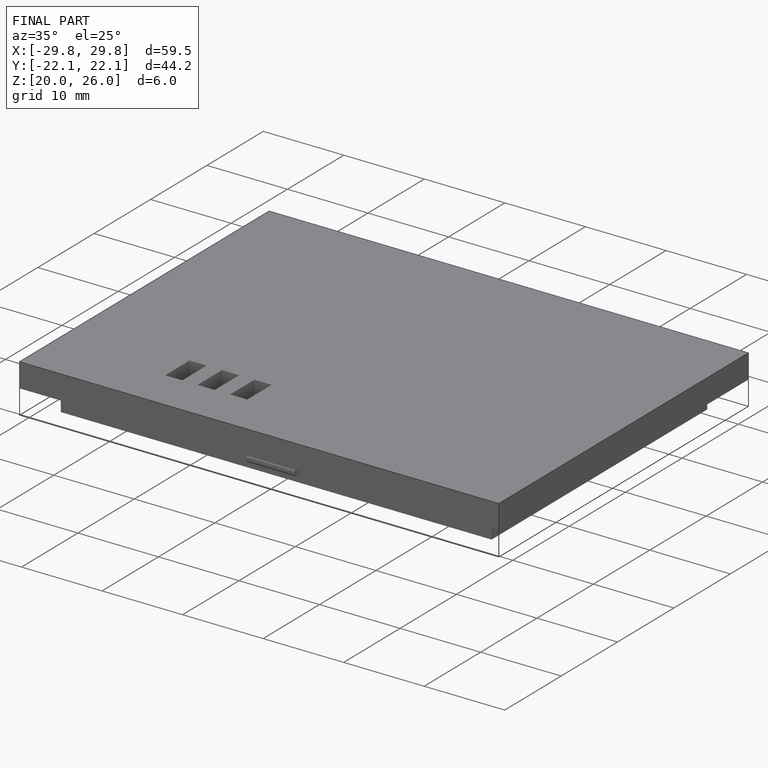
[diagram: finished part — iso view with bounding-box wireframe]
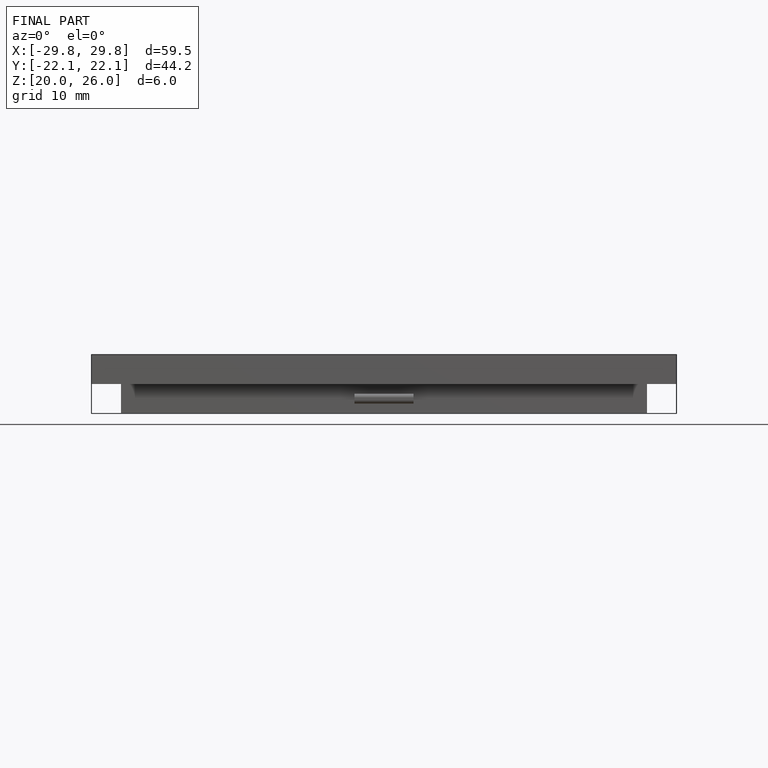
[diagram: finished part — front view with bounding-box wireframe]
